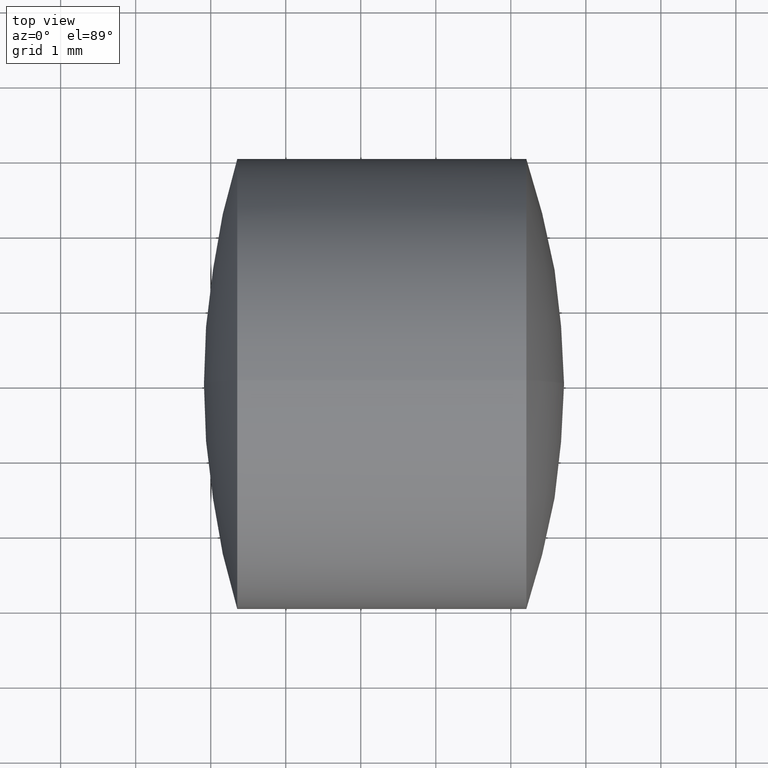
[diagram: clean part render]
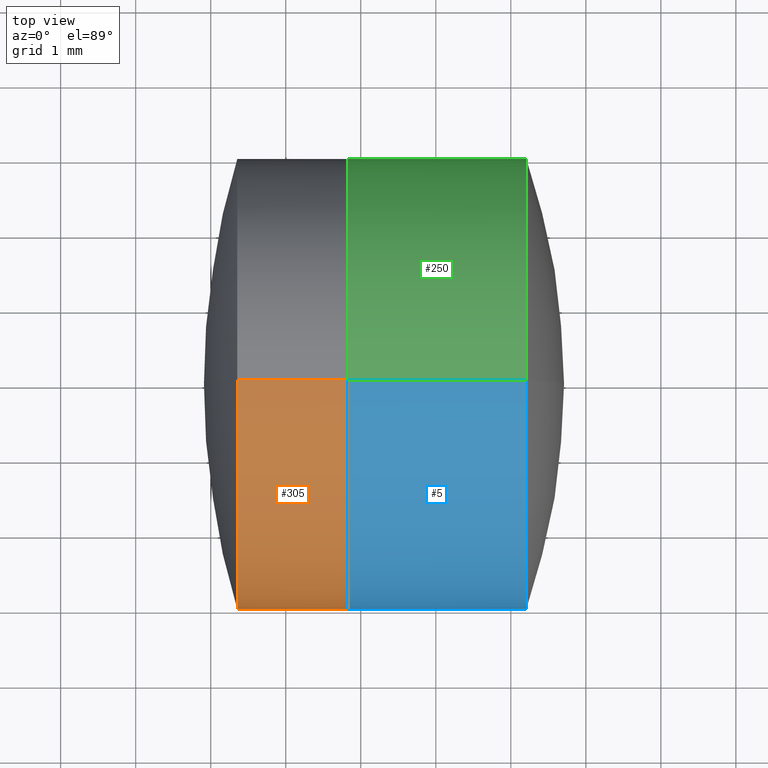
[diagram: same view with three faces highlighted in distinct colors, each labeled with its STEP entity id]
A machine part, top view with three faces highlighted in distinct colors.
Their STEP definitions:

[orange] entity #305 — the highlighted cylindrical surface (partial cylindrical patch) has radius 3 mm, axis along (-1, -0, -0).
#10 = CARTESIAN_POINT ( 'NONE',  ( 1.831048013437507300, 0.0000000000000000000, 3.000000000000000000 ) ) ;
#37 = ORIENTED_EDGE ( 'NONE', *, *, #116, .F. ) ;
#55 = CARTESIAN_POINT ( 'NONE',  ( 1.831048013437507300, 0.0000000000000000000, 0.0000000000000000000 ) ) ;
#75 = EDGE_CURVE ( 'NONE', #213, #314, #87, .T. ) ;
#83 = ORIENTED_EDGE ( 'NONE', *, *, #75, .T. ) ;
#86 = CIRCLE ( 'NONE', #324, 3.000000000000000000 ) ;
#87 = LINE ( 'NONE', #322, #137 ) ;
#89 = CARTESIAN_POINT ( 'NONE',  ( -0.8160621761658039000, 3.673940397442059900E-016, -3.000000000000000000 ) ) ;
#100 = DIRECTION ( 'NONE',  ( -1.000000000000000000, -0.0000000000000000000, -0.0000000000000000000 ) ) ;
#102 = CARTESIAN_POINT ( 'NONE',  ( 0.3539120285020531100, -3.673940397442060400E-016, 3.000000000000000000 ) ) ;
#116 = EDGE_CURVE ( 'NONE', #326, #216, #117, .T. ) ;
#117 = LINE ( 'NONE', #89, #147 ) ;
#127 = DIRECTION ( 'NONE',  ( -1.000000000000000000, -0.0000000000000000000, -0.0000000000000000000 ) ) ;
#137 = VECTOR ( 'NONE', #127, 1000.000000000000000 ) ;
#141 = CARTESIAN_POINT ( 'NONE',  ( 0.3539120285020534400, 0.0000000000000000000, 0.0000000000000000000 ) ) ;
#142 = DIRECTION ( 'NONE',  ( 0.0000000000000000000, 0.0000000000000000000, 1.000000000000000000 ) ) ;
#145 = EDGE_LOOP ( 'NONE', ( #37, #193, #83, #295 ) ) ;
#147 = VECTOR ( 'NONE', #100, 1000.000000000000000 ) ;
#156 = DIRECTION ( 'NONE',  ( -1.000000000000000000, -0.0000000000000000000, -0.0000000000000000000 ) ) ;
#164 = AXIS2_PLACEMENT_3D ( 'NONE', #203, #156, #181 ) ;
#181 = DIRECTION ( 'NONE',  ( 0.0000000000000000000, 0.0000000000000000000, 1.000000000000000000 ) ) ;
#188 = CARTESIAN_POINT ( 'NONE',  ( 0.3539120285020531100, 0.0000000000000000000, -3.000000000000000000 ) ) ;
#193 = ORIENTED_EDGE ( 'NONE', *, *, #209, .T. ) ;
#195 = EDGE_CURVE ( 'NONE', #216, #314, #308, .T. ) ;
#203 = CARTESIAN_POINT ( 'NONE',  ( -0.8160621761658039000, 0.0000000000000000000, 0.0000000000000000000 ) ) ;
#209 = EDGE_CURVE ( 'NONE', #326, #213, #86, .T. ) ;
#213 = VERTEX_POINT ( 'NONE', #10 ) ;
#216 = VERTEX_POINT ( 'NONE', #188 ) ;
#248 = AXIS2_PLACEMENT_3D ( 'NONE', #141, #323, #343 ) ;
#249 = FACE_OUTER_BOUND ( 'NONE', #145, .T. ) ;
#264 = DIRECTION ( 'NONE',  ( -1.000000000000000000, -0.0000000000000000000, -0.0000000000000000000 ) ) ;
#285 = CARTESIAN_POINT ( 'NONE',  ( 1.831048013437507300, 3.673940397442059900E-016, -3.000000000000000000 ) ) ;
#295 = ORIENTED_EDGE ( 'NONE', *, *, #195, .F. ) ;
#304 = CYLINDRICAL_SURFACE ( 'NONE', #164, 3.000000000000000000 ) ;
#305 = ADVANCED_FACE ( 'NONE', ( #249 ), #304, .T. ) ;
#308 = CIRCLE ( 'NONE', #248, 3.000000000000000000 ) ;
#314 = VERTEX_POINT ( 'NONE', #102 ) ;
#322 = CARTESIAN_POINT ( 'NONE',  ( -0.8160621761658039000, 0.0000000000000000000, 3.000000000000000000 ) ) ;
#323 = DIRECTION ( 'NONE',  ( -1.000000000000000000, -0.0000000000000000000, -0.0000000000000000000 ) ) ;
#324 = AXIS2_PLACEMENT_3D ( 'NONE', #55, #264, #142 ) ;
#326 = VERTEX_POINT ( 'NONE', #285 ) ;
#343 = DIRECTION ( 'NONE',  ( 0.0000000000000000000, 0.0000000000000000000, 1.000000000000000000 ) ) ;

[blue] entity #5 — the highlighted cylindrical surface (partial cylindrical patch) has radius 3 mm, axis along (-1, -0, -0).
#5 = ADVANCED_FACE ( 'NONE', ( #171 ), #339, .T. ) ;
#17 = DIRECTION ( 'NONE',  ( -1.000000000000000000, -0.0000000000000000000, -0.0000000000000000000 ) ) ;
#34 = EDGE_CURVE ( 'NONE', #221, #222, #84, .T. ) ;
#35 = CARTESIAN_POINT ( 'NONE',  ( -0.5519199926577972300, 0.0000000000000000000, 0.0000000000000000000 ) ) ;
#42 = EDGE_CURVE ( 'NONE', #105, #222, #81, .T. ) ;
#44 = DIRECTION ( 'NONE',  ( 0.0000000000000000000, 0.0000000000000000000, 1.000000000000000000 ) ) ;
#45 = VERTEX_POINT ( 'NONE', #281 ) ;
#81 = LINE ( 'NONE', #124, #95 ) ;
#84 = CIRCLE ( 'NONE', #346, 3.000000000000000000 ) ;
#95 = VECTOR ( 'NONE', #278, 1000.000000000000000 ) ;
#105 = VERTEX_POINT ( 'NONE', #225 ) ;
#109 = DIRECTION ( 'NONE',  ( -1.000000000000000000, -0.0000000000000000000, -0.0000000000000000000 ) ) ;
#124 = CARTESIAN_POINT ( 'NONE',  ( -0.5519199926577972300, 0.0000000000000000000, 3.000000000000000000 ) ) ;
#136 = CARTESIAN_POINT ( 'NONE',  ( 1.831048013437506900, -3.673940397442060400E-016, 3.000000000000000000 ) ) ;
#162 = DIRECTION ( 'NONE',  ( 0.0000000000000000000, 0.0000000000000000000, 1.000000000000000000 ) ) ;
#166 = ORIENTED_EDGE ( 'NONE', *, *, #321, .T. ) ;
#171 = FACE_OUTER_BOUND ( 'NONE', #182, .T. ) ;
#182 = EDGE_LOOP ( 'NONE', ( #233, #166, #206, #320 ) ) ;
#191 = AXIS2_PLACEMENT_3D ( 'NONE', #201, #17, #44 ) ;
#199 = DIRECTION ( 'NONE',  ( 0.0000000000000000000, 0.0000000000000000000, 1.000000000000000000 ) ) ;
#201 = CARTESIAN_POINT ( 'NONE',  ( 4.206718179225045900, 0.0000000000000000000, 0.0000000000000000000 ) ) ;
#206 = ORIENTED_EDGE ( 'NONE', *, *, #42, .T. ) ;
#215 = CIRCLE ( 'NONE', #191, 3.000000000000000000 ) ;
#221 = VERTEX_POINT ( 'NONE', #288 ) ;
#222 = VERTEX_POINT ( 'NONE', #136 ) ;
#225 = CARTESIAN_POINT ( 'NONE',  ( 4.206718179225045900, -3.673940397442063300E-016, 3.000000000000003600 ) ) ;
#231 = CARTESIAN_POINT ( 'NONE',  ( -0.5519199926577972300, 3.673940397442059900E-016, -3.000000000000000000 ) ) ;
#233 = ORIENTED_EDGE ( 'NONE', *, *, #251, .F. ) ;
#251 = EDGE_CURVE ( 'NONE', #45, #221, #298, .T. ) ;
#272 = DIRECTION ( 'NONE',  ( -1.000000000000000000, -0.0000000000000000000, -0.0000000000000000000 ) ) ;
#278 = DIRECTION ( 'NONE',  ( -1.000000000000000000, -0.0000000000000000000, -0.0000000000000000000 ) ) ;
#281 = CARTESIAN_POINT ( 'NONE',  ( 4.206718179225045900, 0.0000000000000000000, -3.000000000000003600 ) ) ;
#288 = CARTESIAN_POINT ( 'NONE',  ( 1.831048013437506900, 0.0000000000000000000, -3.000000000000000000 ) ) ;
#298 = LINE ( 'NONE', #231, #319 ) ;
#307 = CARTESIAN_POINT ( 'NONE',  ( 1.831048013437506900, 0.0000000000000000000, 0.0000000000000000000 ) ) ;
#319 = VECTOR ( 'NONE', #342, 1000.000000000000000 ) ;
#320 = ORIENTED_EDGE ( 'NONE', *, *, #34, .F. ) ;
#321 = EDGE_CURVE ( 'NONE', #45, #105, #215, .T. ) ;
#338 = AXIS2_PLACEMENT_3D ( 'NONE', #35, #272, #199 ) ;
#339 = CYLINDRICAL_SURFACE ( 'NONE', #338, 3.000000000000000000 ) ;
#342 = DIRECTION ( 'NONE',  ( -1.000000000000000000, -0.0000000000000000000, -0.0000000000000000000 ) ) ;
#346 = AXIS2_PLACEMENT_3D ( 'NONE', #307, #109, #162 ) ;

[green] entity #250 — the highlighted cylindrical surface (partial cylindrical patch) has radius 3 mm, axis along (-1, -0, -0).
#7 = EDGE_CURVE ( 'NONE', #222, #221, #336, .T. ) ;
#42 = EDGE_CURVE ( 'NONE', #105, #222, #81, .T. ) ;
#45 = VERTEX_POINT ( 'NONE', #281 ) ;
#64 = DIRECTION ( 'NONE',  ( 0.0000000000000000000, 0.0000000000000000000, 1.000000000000000000 ) ) ;
#71 = AXIS2_PLACEMENT_3D ( 'NONE', #175, #254, #330 ) ;
#81 = LINE ( 'NONE', #124, #95 ) ;
#91 = DIRECTION ( 'NONE',  ( -1.000000000000000000, -0.0000000000000000000, -0.0000000000000000000 ) ) ;
#95 = VECTOR ( 'NONE', #278, 1000.000000000000000 ) ;
#105 = VERTEX_POINT ( 'NONE', #225 ) ;
#115 = DIRECTION ( 'NONE',  ( -1.000000000000000000, -0.0000000000000000000, -0.0000000000000000000 ) ) ;
#124 = CARTESIAN_POINT ( 'NONE',  ( -0.5519199926577972300, 0.0000000000000000000, 3.000000000000000000 ) ) ;
#129 = ORIENTED_EDGE ( 'NONE', *, *, #133, .T. ) ;
#133 = EDGE_CURVE ( 'NONE', #105, #45, #269, .T. ) ;
#136 = CARTESIAN_POINT ( 'NONE',  ( 1.831048013437506900, -3.673940397442060400E-016, 3.000000000000000000 ) ) ;
#175 = CARTESIAN_POINT ( 'NONE',  ( 4.206718179225045900, 0.0000000000000000000, 0.0000000000000000000 ) ) ;
#183 = AXIS2_PLACEMENT_3D ( 'NONE', #218, #91, #64 ) ;
#189 = ORIENTED_EDGE ( 'NONE', *, *, #251, .T. ) ;
#207 = EDGE_LOOP ( 'NONE', ( #129, #189, #280, #245 ) ) ;
#214 = FACE_OUTER_BOUND ( 'NONE', #207, .T. ) ;
#218 = CARTESIAN_POINT ( 'NONE',  ( 1.831048013437506900, 0.0000000000000000000, 0.0000000000000000000 ) ) ;
#221 = VERTEX_POINT ( 'NONE', #288 ) ;
#222 = VERTEX_POINT ( 'NONE', #136 ) ;
#225 = CARTESIAN_POINT ( 'NONE',  ( 4.206718179225045900, -3.673940397442063300E-016, 3.000000000000003600 ) ) ;
#231 = CARTESIAN_POINT ( 'NONE',  ( -0.5519199926577972300, 3.673940397442059900E-016, -3.000000000000000000 ) ) ;
#232 = CYLINDRICAL_SURFACE ( 'NONE', #253, 3.000000000000000000 ) ;
#238 = CARTESIAN_POINT ( 'NONE',  ( -0.5519199926577972300, 0.0000000000000000000, 0.0000000000000000000 ) ) ;
#245 = ORIENTED_EDGE ( 'NONE', *, *, #42, .F. ) ;
#250 = ADVANCED_FACE ( 'NONE', ( #214 ), #232, .T. ) ;
#251 = EDGE_CURVE ( 'NONE', #45, #221, #298, .T. ) ;
#253 = AXIS2_PLACEMENT_3D ( 'NONE', #238, #115, #261 ) ;
#254 = DIRECTION ( 'NONE',  ( -1.000000000000000000, -0.0000000000000000000, -0.0000000000000000000 ) ) ;
#261 = DIRECTION ( 'NONE',  ( 0.0000000000000000000, 0.0000000000000000000, 1.000000000000000000 ) ) ;
#269 = CIRCLE ( 'NONE', #71, 3.000000000000000000 ) ;
#278 = DIRECTION ( 'NONE',  ( -1.000000000000000000, -0.0000000000000000000, -0.0000000000000000000 ) ) ;
#280 = ORIENTED_EDGE ( 'NONE', *, *, #7, .F. ) ;
#281 = CARTESIAN_POINT ( 'NONE',  ( 4.206718179225045900, 0.0000000000000000000, -3.000000000000003600 ) ) ;
#288 = CARTESIAN_POINT ( 'NONE',  ( 1.831048013437506900, 0.0000000000000000000, -3.000000000000000000 ) ) ;
#298 = LINE ( 'NONE', #231, #319 ) ;
#319 = VECTOR ( 'NONE', #342, 1000.000000000000000 ) ;
#330 = DIRECTION ( 'NONE',  ( 0.0000000000000000000, 0.0000000000000000000, 1.000000000000000000 ) ) ;
#336 = CIRCLE ( 'NONE', #183, 3.000000000000000000 ) ;
#342 = DIRECTION ( 'NONE',  ( -1.000000000000000000, -0.0000000000000000000, -0.0000000000000000000 ) ) ;